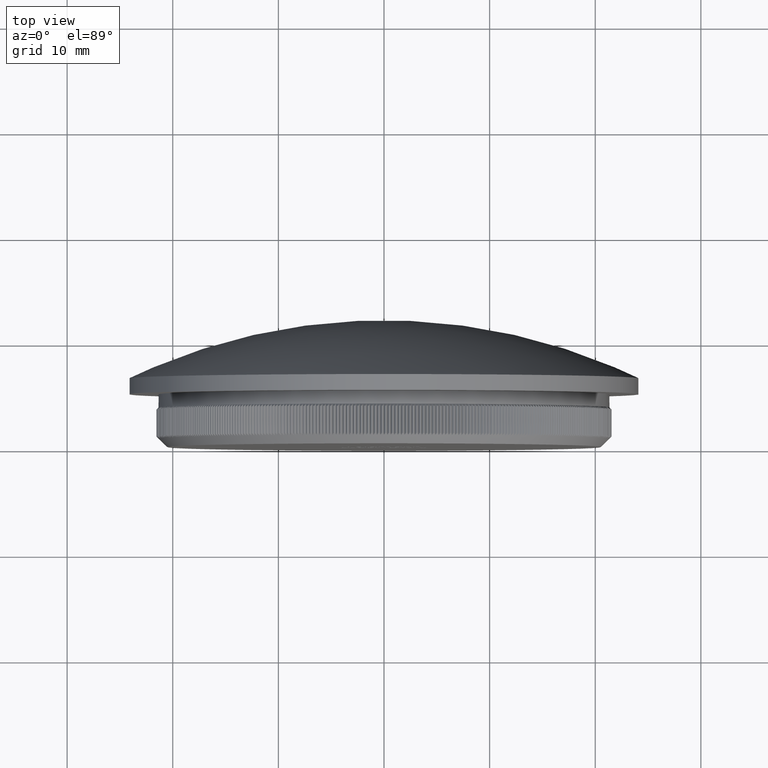
[diagram: clean part render]
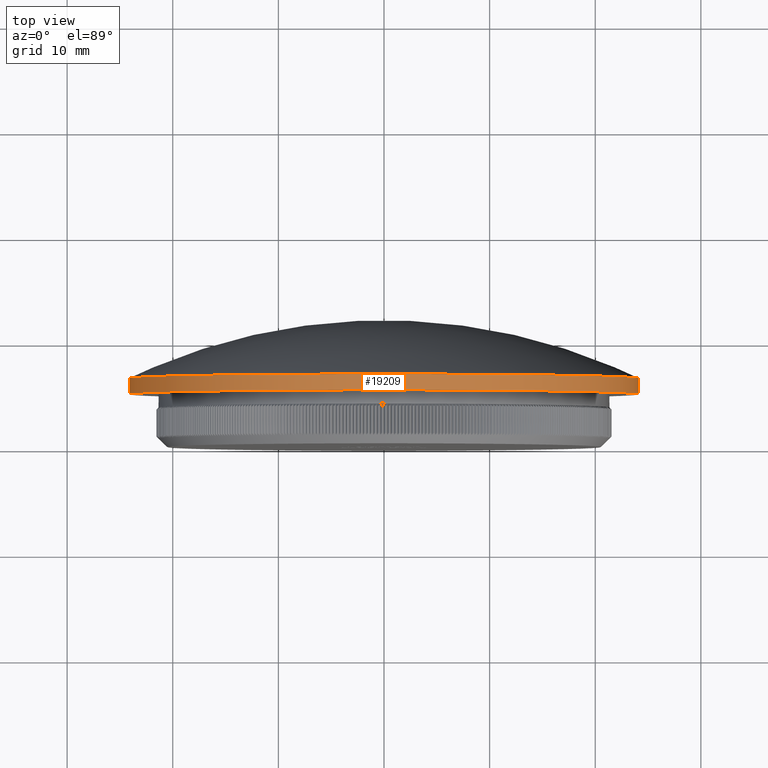
[diagram: same view with one face highlighted and labeled with its STEP entity id]
A machine part, top view. The second image highlights one B-rep face of the part: STEP entity #19209.
In plain terms, the highlighted cylindrical surface (bore or boss wall) has radius 24.15 mm, axis along (-0, -1, -0).
Its self-contained STEP definition (entity closure, byte-faithful):
#571 = CARTESIAN_POINT ( 'NONE',  ( 0.000000000000000000, 0.000000000000000000, 0.000000000000000000 ) ) ;
#4150 = FACE_OUTER_BOUND ( 'NONE', #10951, .T. ) ;
#4929 = DIRECTION ( 'NONE',  ( 0.000000000000000000, 0.000000000000000000, -1.000000000000000000 ) ) ;
#9620 = FACE_OUTER_BOUND ( 'NONE', #58747, .T. ) ;
#10558 = AXIS2_PLACEMENT_3D ( 'NONE', #571, #49879, #4929 ) ;
#10951 = EDGE_LOOP ( 'NONE', ( #60829 ) ) ;
#11719 = CARTESIAN_POINT ( 'NONE',  ( 0.000000000000000000, 5.000000000000000000, -24.14999999999999858 ) ) ;
#11854 = CARTESIAN_POINT ( 'NONE',  ( 0.000000000000000000, 5.000000000000000000, 0.000000000000000000 ) ) ;
#13167 = CIRCLE ( 'NONE', #24487, 24.14999999999999858 ) ;
#17031 = EDGE_CURVE ( 'NONE', #23747, #23747, #46468, .T. ) ;
#19209 = ADVANCED_FACE ( 'NONE', ( #4150, #9620 ), #58041, .T. ) ;
#22050 = DIRECTION ( 'NONE',  ( -0.000000000000000000, -1.000000000000000000, -0.000000000000000000 ) ) ;
#23747 = VERTEX_POINT ( 'NONE', #11719 ) ;
#24487 = AXIS2_PLACEMENT_3D ( 'NONE', #46691, #36652, #41490 ) ;
#36652 = DIRECTION ( 'NONE',  ( -0.000000000000000000, -1.000000000000000000, -0.000000000000000000 ) ) ;
#41490 = DIRECTION ( 'NONE',  ( 0.000000000000000000, 0.000000000000000000, -1.000000000000000000 ) ) ;
#43933 = AXIS2_PLACEMENT_3D ( 'NONE', #11854, #22050, #56868 ) ;
#44565 = EDGE_CURVE ( 'NONE', #60414, #60414, #13167, .T. ) ;
#46468 = CIRCLE ( 'NONE', #43933, 24.14999999999999858 ) ;
#46691 = CARTESIAN_POINT ( 'NONE',  ( 0.000000000000000000, 6.500000000000005329, 0.000000000000000000 ) ) ;
#49879 = DIRECTION ( 'NONE',  ( -0.000000000000000000, -1.000000000000000000, -0.000000000000000000 ) ) ;
#56868 = DIRECTION ( 'NONE',  ( 0.000000000000000000, 0.000000000000000000, -1.000000000000000000 ) ) ;
#57925 = ORIENTED_EDGE ( 'NONE', *, *, #17031, .F. ) ;
#58041 = CYLINDRICAL_SURFACE ( 'NONE', #10558, 24.14999999999999858 ) ;
#58747 = EDGE_LOOP ( 'NONE', ( #57925 ) ) ;
#60414 = VERTEX_POINT ( 'NONE', #61279 ) ;
#60829 = ORIENTED_EDGE ( 'NONE', *, *, #44565, .T. ) ;
#61279 = CARTESIAN_POINT ( 'NONE',  ( 0.000000000000000000, 6.500000000000005329, -24.14999999999999858 ) ) ;